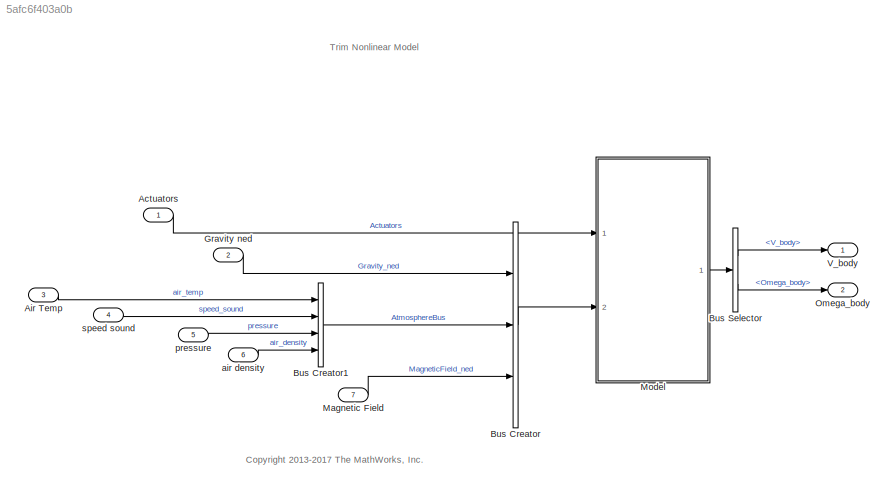
MODEL slx_5afc6f403a0b
KIND model
CONFIG AbsTol = auto
CONFIG EnableMultiTasking = on
CONFIG FixedStep = Ts
CONFIG MaxStep = auto
CONFIG MinStep = auto
CONFIG RelTol = 1e-3
CONFIG SampleTimeConstraint = Unconstrained
CONFIG Solver = ode3
CONFIG SolverName = ode3
CONFIG StartTime = 0
CONFIG StopTime = 100
BLOCK [Inport] Actuators
  IconDisplay = Port number
  OutDataTypeStr = double
  PortDimensions = [1 4]
BLOCK [Inport] Air Temp
  IconDisplay = Port number
  Port = 3
  Unit = K
BLOCK [BusCreator] Bus Creator
  DisplayOption = bar
  InheritFromInputs = on
  Inputs = 3
  NonVirtualBus = on
  OutDataTypeStr = Bus: EnvironmentBus
  Ports = [3, 1]
BLOCK [BusCreator] Bus Creator1
  DisplayOption = bar
  InheritFromInputs = on
  Inputs = 4
  NonVirtualBus = on
  OutDataTypeStr = Bus: AtmosphereBus
  Ports = [4, 1]
BLOCK [BusSelector] Bus Selector
  OutputAsBus = off
  OutputSignals = V_body,Omega_body
  Ports = [1, 2]
BLOCK [Inport] Gravity ned
  IconDisplay = Port number
  Port = 2
  Unit = m/s^2
BLOCK [Inport] Magnetic Field
  IconDisplay = Port number
  Port = 7
  Unit = nT
BLOCK [ModelReference] Model
  ModelNameDialog = nonlinearAirframe.slx
  ModelReferenceVersion = 1.145
  Ports = [2, 1]
  Variant = off
BLOCK [Outport] Omega_body
  IconDisplay = Port number
  Port = 2
  Unit = rad/s
BLOCK [Outport] V_body
  IconDisplay = Port number
  Unit = m/s
BLOCK [Inport] air density
  IconDisplay = Port number
  Port = 6
  Unit = kg/m^3
BLOCK [Inport] pressure
  IconDisplay = Port number
  Port = 5
  Unit = Pa
BLOCK [Inport] speed sound
  IconDisplay = Port number
  Port = 4
  Unit = m/s
ANNOTATION (root): Trim Nonlinear Model
ANNOTATION (root): <copyright redacted>
LINE Actuators:1 -> Model:1
LINE Air Temp:1 -> Bus Creator1:1
LINE Bus Creator1:1 -> Bus Creator:2
LINE Bus Creator:1 -> Model:2
LINE Bus Selector:1 -> V_body:1
LINE Bus Selector:2 -> Omega_body:1
LINE Gravity ned:1 -> Bus Creator:1
LINE Magnetic Field:1 -> Bus Creator:3
LINE Model:1 -> Bus Selector:1
LINE air density:1 -> Bus Creator1:4
LINE pressure:1 -> Bus Creator1:3
LINE speed sound:1 -> Bus Creator1:2
